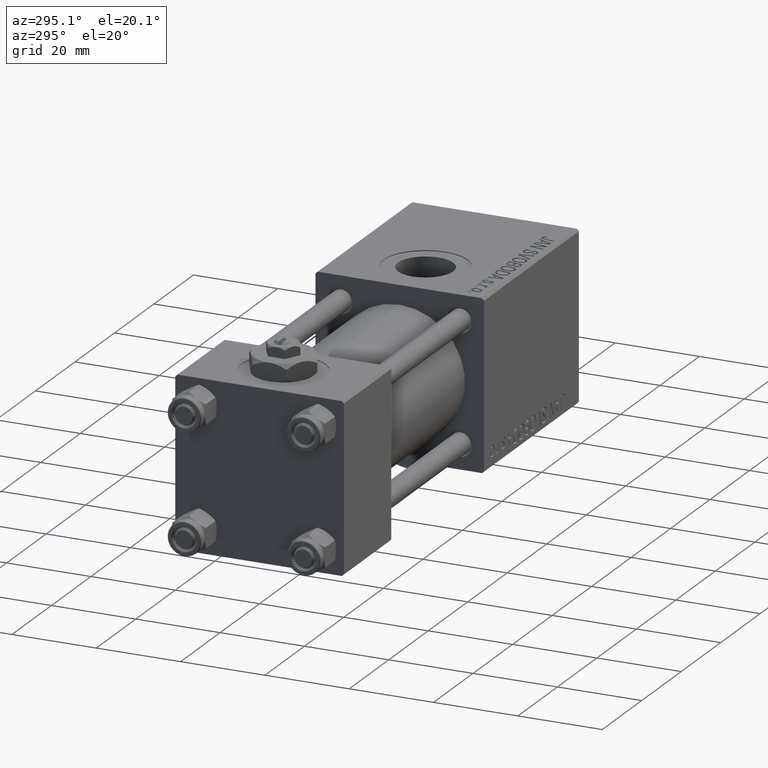
[diagram: clean part render]
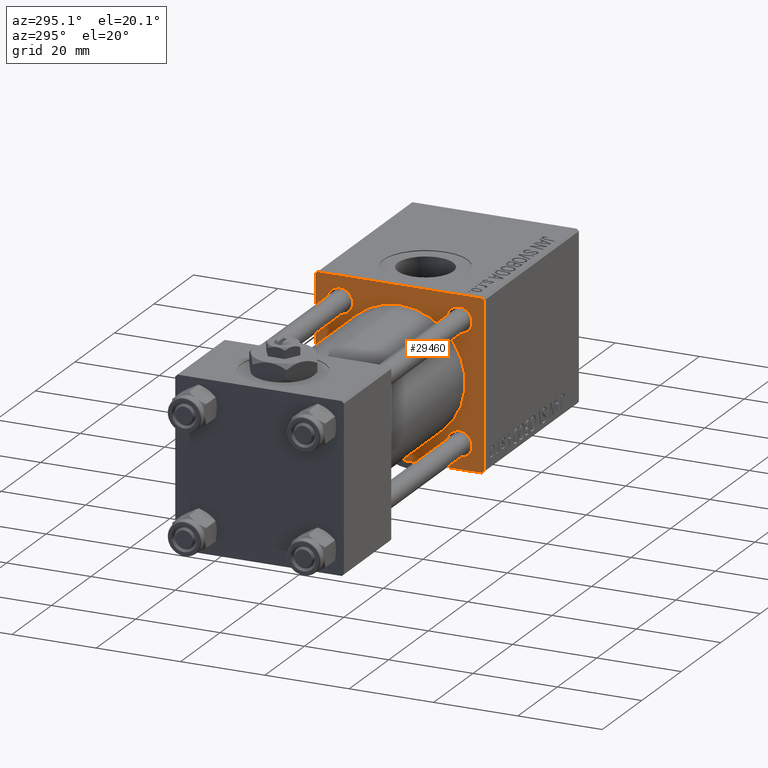
[diagram: same view with one face highlighted and labeled with its STEP entity id]
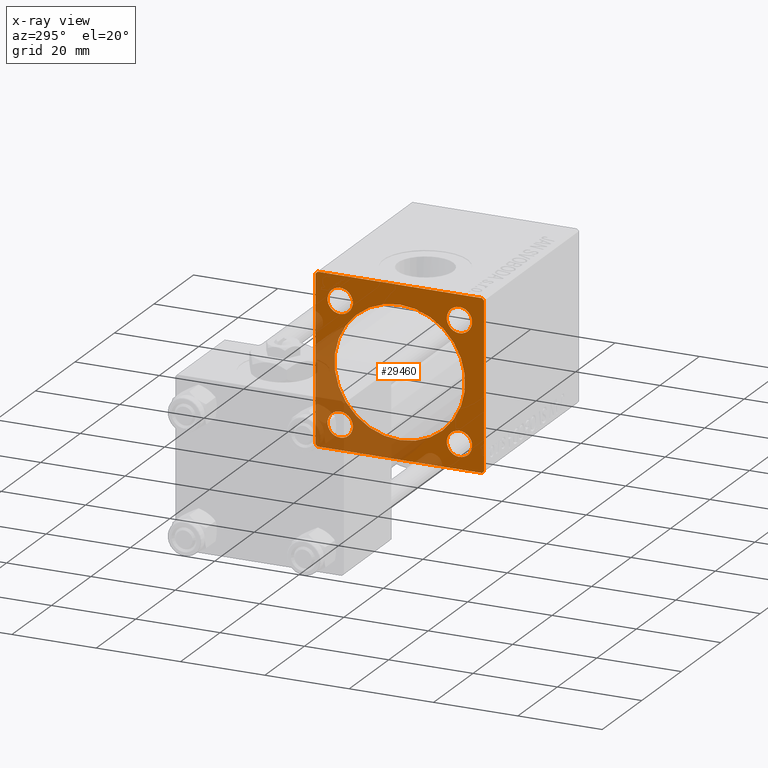
[diagram: x-ray of the same camera — body ghosted, the highlighted face saturated]
A machine part, auxiliary view. The second image highlights one B-rep face of the part: STEP entity #29460.
The next image is the same camera in x-ray: the body ghosted, the highlighted face saturated — about 34% of this face is hidden behind the body in this view.
In plain terms, the highlighted planar face has unit normal (-1, 0, 0).
Its self-contained STEP definition (entity closure, byte-faithful):
#747 = CARTESIAN_POINT ( 'NONE',  ( 71.00000000000001421, 19.74999999999999645, -19.74999999999999645 ) ) ;
#883 = EDGE_CURVE ( 'NONE', #21408, #43616, #9588, .T. ) ;
#1068 = FACE_BOUND ( 'NONE', #15625, .T. ) ;
#1083 = CARTESIAN_POINT ( 'NONE',  ( 71.00000000000001421, -19.50000000000002487, -20.00000000000000000 ) ) ;
#1185 = VERTEX_POINT ( 'NONE', #11917 ) ;
#1434 = ORIENTED_EDGE ( 'NONE', *, *, #23300, .T. ) ;
#1675 = CARTESIAN_POINT ( 'NONE',  ( 71.00000000000001421, -14.15000000000000036, -11.14999999999999680 ) ) ;
#1779 = CIRCLE ( 'NONE', #22859, 15.50000000000000000 ) ;
#2062 = AXIS2_PLACEMENT_3D ( 'NONE', #30205, #2448, #18267 ) ;
#2175 = ORIENTED_EDGE ( 'NONE', *, *, #18856, .T. ) ;
#2213 = ORIENTED_EDGE ( 'NONE', *, *, #15958, .T. ) ;
#2448 = DIRECTION ( 'NONE',  ( 1.000000000000000000, 0.000000000000000000, 0.000000000000000000 ) ) ;
#3237 = EDGE_CURVE ( 'NONE', #43473, #43616, #40203, .T. ) ;
#4255 = CARTESIAN_POINT ( 'NONE',  ( 71.00000000000001421, 0.000000000000000000, 0.000000000000000000 ) ) ;
#4827 = EDGE_CURVE ( 'NONE', #1185, #46134, #30425, .T. ) ;
#4895 = VECTOR ( 'NONE', #36216, 1000.000000000000000 ) ;
#5136 = ORIENTED_EDGE ( 'NONE', *, *, #35132, .F. ) ;
#6135 = CARTESIAN_POINT ( 'NONE',  ( 71.00000000000001421, 14.15000000000000036, 11.14999999999999680 ) ) ;
#6204 = CARTESIAN_POINT ( 'NONE',  ( 71.00000000000001421, 19.74999999999971578, 19.75000000000026290 ) ) ;
#6800 = EDGE_CURVE ( 'NONE', #8627, #16056, #12798, .T. ) ;
#6832 = ORIENTED_EDGE ( 'NONE', *, *, #4827, .T. ) ;
#7193 = VERTEX_POINT ( 'NONE', #9322 ) ;
#7291 = DIRECTION ( 'NONE',  ( 1.000000000000000000, 0.000000000000000000, 0.000000000000000000 ) ) ;
#7948 = FACE_BOUND ( 'NONE', #21122, .T. ) ;
#8078 = CIRCLE ( 'NONE', #49477, 3.000000000000004441 ) ;
#8080 = DIRECTION ( 'NONE',  ( 0.000000000000000000, 0.000000000000000000, 1.000000000000000000 ) ) ;
#8627 = VERTEX_POINT ( 'NONE', #51480 ) ;
#8664 = VERTEX_POINT ( 'NONE', #47796 ) ;
#8720 = DIRECTION ( 'NONE',  ( -0.000000000000000000, 0.7071067811865573427, 0.7071067811865376918 ) ) ;
#8881 = AXIS2_PLACEMENT_3D ( 'NONE', #40734, #9227, #16881 ) ;
#8917 = VECTOR ( 'NONE', #50926, 1000.000000000000000 ) ;
#9227 = DIRECTION ( 'NONE',  ( 1.000000000000000000, 0.000000000000000000, 0.000000000000000000 ) ) ;
#9253 = ORIENTED_EDGE ( 'NONE', *, *, #22684, .T. ) ;
#9322 = CARTESIAN_POINT ( 'NONE',  ( 71.00000000000001421, -14.15000000000000036, 11.14999999999999503 ) ) ;
#9430 = DIRECTION ( 'NONE',  ( 0.000000000000000000, 0.000000000000000000, 1.000000000000000000 ) ) ;
#9588 = LINE ( 'NONE', #13028, #29564 ) ;
#10119 = DIRECTION ( 'NONE',  ( 0.000000000000000000, 0.000000000000000000, -1.000000000000000000 ) ) ;
#10144 = CIRCLE ( 'NONE', #18559, 3.000000000000004441 ) ;
#10450 = LINE ( 'NONE', #14405, #8917 ) ;
#11149 = ORIENTED_EDGE ( 'NONE', *, *, #16913, .T. ) ;
#11176 = DIRECTION ( 'NONE',  ( 0.000000000000000000, 0.7071067811865574537, -0.7071067811865376918 ) ) ;
#11427 = DIRECTION ( 'NONE',  ( 0.000000000000000000, 0.000000000000000000, 1.000000000000000000 ) ) ;
#11827 = LINE ( 'NONE', #747, #43662 ) ;
#11874 = DIRECTION ( 'NONE',  ( 0.000000000000000000, -0.7071067811865376918, 0.7071067811865574537 ) ) ;
#11888 = FACE_BOUND ( 'NONE', #24206, .T. ) ;
#11917 = CARTESIAN_POINT ( 'NONE',  ( 71.00000000000001421, 14.15000000000000036, -17.15000000000000568 ) ) ;
#11951 = AXIS2_PLACEMENT_3D ( 'NONE', #43407, #27506, #16116 ) ;
#12140 = LINE ( 'NONE', #16358, #4895 ) ;
#12408 = DIRECTION ( 'NONE',  ( -0.000000000000000000, 0.000000000000000000, 1.000000000000000000 ) ) ;
#12798 = CIRCLE ( 'NONE', #38148, 3.000000000000004441 ) ;
#13028 = CARTESIAN_POINT ( 'NONE',  ( 71.00000000000001421, -20.00000000000000355, 19.99999999999999645 ) ) ;
#13096 = EDGE_LOOP ( 'NONE', ( #41198, #23648, #31573, #35668, #5136, #28745, #11149, #1434 ) ) ;
#13913 = ORIENTED_EDGE ( 'NONE', *, *, #18443, .T. ) ;
#14365 = AXIS2_PLACEMENT_3D ( 'NONE', #25403, #17212, #41589 ) ;
#14405 = CARTESIAN_POINT ( 'NONE',  ( 71.00000000000001421, 19.99999999999999645, -20.00000000000000000 ) ) ;
#15193 = VECTOR ( 'NONE', #11874, 999.9999999999998863 ) ;
#15625 = EDGE_LOOP ( 'NONE', ( #9253, #2175 ) ) ;
#15809 = CARTESIAN_POINT ( 'NONE',  ( 71.00000000000001421, -14.15000000000000036, 17.15000000000000568 ) ) ;
#15844 = LINE ( 'NONE', #44974, #39416 ) ;
#15958 = EDGE_CURVE ( 'NONE', #46134, #1185, #22287, .T. ) ;
#16056 = VERTEX_POINT ( 'NONE', #1675 ) ;
#16116 = DIRECTION ( 'NONE',  ( 0.000000000000000000, 0.000000000000000000, -1.000000000000000000 ) ) ;
#16358 = CARTESIAN_POINT ( 'NONE',  ( 71.00000000000001421, 19.99999999999999645, 20.00000000000000000 ) ) ;
#16881 = DIRECTION ( 'NONE',  ( 0.000000000000000000, 0.000000000000000000, 1.000000000000000000 ) ) ;
#16913 = EDGE_CURVE ( 'NONE', #48575, #51024, #27013, .T. ) ;
#17159 = FACE_BOUND ( 'NONE', #35851, .T. ) ;
#17212 = DIRECTION ( 'NONE',  ( 1.000000000000000000, 0.000000000000000000, 0.000000000000000000 ) ) ;
#18267 = DIRECTION ( 'NONE',  ( 0.000000000000000000, 0.000000000000000000, 1.000000000000000000 ) ) ;
#18443 = EDGE_CURVE ( 'NONE', #8664, #46702, #26600, .T. ) ;
#18452 = CARTESIAN_POINT ( 'NONE',  ( 71.00000000000001421, -2.602085213965210642E-15, 15.50000000000000000 ) ) ;
#18559 = AXIS2_PLACEMENT_3D ( 'NONE', #48513, #20679, #24650 ) ;
#18856 = EDGE_CURVE ( 'NONE', #7193, #21832, #8078, .T. ) ;
#18967 = EDGE_CURVE ( 'NONE', #30918, #43473, #10450, .T. ) ;
#19109 = ORIENTED_EDGE ( 'NONE', *, *, #44005, .T. ) ;
#20095 = CARTESIAN_POINT ( 'NONE',  ( 71.00000000000001421, -7.038826752868131828E-16, -15.50000000000000000 ) ) ;
#20333 = DIRECTION ( 'NONE',  ( -1.000000000000000000, 0.000000000000000000, -0.000000000000000000 ) ) ;
#20622 = DIRECTION ( 'NONE',  ( 0.000000000000000000, 0.000000000000000000, 1.000000000000000000 ) ) ;
#20679 = DIRECTION ( 'NONE',  ( 1.000000000000000000, 0.000000000000000000, 0.000000000000000000 ) ) ;
#21122 = EDGE_LOOP ( 'NONE', ( #47301, #45031 ) ) ;
#21408 = VERTEX_POINT ( 'NONE', #24439 ) ;
#21832 = VERTEX_POINT ( 'NONE', #15809 ) ;
#22287 = CIRCLE ( 'NONE', #2062, 3.000000000000004441 ) ;
#22684 = EDGE_CURVE ( 'NONE', #21832, #7193, #36050, .T. ) ;
#22859 = AXIS2_PLACEMENT_3D ( 'NONE', #46428, #26299, #33986 ) ;
#23300 = EDGE_CURVE ( 'NONE', #51024, #30918, #11827, .T. ) ;
#23306 = DIRECTION ( 'NONE',  ( 1.000000000000000000, 0.000000000000000000, 0.000000000000000000 ) ) ;
#23648 = ORIENTED_EDGE ( 'NONE', *, *, #3237, .T. ) ;
#24206 = EDGE_LOOP ( 'NONE', ( #2213, #6832 ) ) ;
#24300 = FACE_OUTER_BOUND ( 'NONE', #13096, .T. ) ;
#24439 = CARTESIAN_POINT ( 'NONE',  ( 71.00000000000001421, -20.00000000000000355, 19.50000000000002487 ) ) ;
#24650 = DIRECTION ( 'NONE',  ( 0.000000000000000000, 0.000000000000000000, 1.000000000000000000 ) ) ;
#25224 = CIRCLE ( 'NONE', #42155, 3.000000000000004441 ) ;
#25403 = CARTESIAN_POINT ( 'NONE',  ( 71.00000000000001421, 14.15000000000000036, -14.15000000000000036 ) ) ;
#25538 = CARTESIAN_POINT ( 'NONE',  ( 71.00000000000001421, -14.15000000000000036, 14.15000000000000036 ) ) ;
#26057 = CARTESIAN_POINT ( 'NONE',  ( 71.00000000000001421, 19.99999999999999645, -19.50000000000000000 ) ) ;
#26299 = DIRECTION ( 'NONE',  ( 1.000000000000000000, 0.000000000000000000, 0.000000000000000000 ) ) ;
#26600 = CIRCLE ( 'NONE', #8881, 3.000000000000004441 ) ;
#27013 = LINE ( 'NONE', #46374, #29104 ) ;
#27108 = ORIENTED_EDGE ( 'NONE', *, *, #6800, .T. ) ;
#27506 = DIRECTION ( 'NONE',  ( 1.000000000000000000, 0.000000000000000000, 0.000000000000000000 ) ) ;
#28546 = CARTESIAN_POINT ( 'NONE',  ( 71.00000000000001421, 14.15000000000000036, -11.14999999999999680 ) ) ;
#28745 = ORIENTED_EDGE ( 'NONE', *, *, #42928, .T. ) ;
#28997 = EDGE_CURVE ( 'NONE', #16056, #8627, #25224, .T. ) ;
#29104 = VECTOR ( 'NONE', #10119, 1000.000000000000000 ) ;
#29460 = ADVANCED_FACE ( 'NONE', ( #1068, #41003, #11888, #17159, #7948, #24300 ), #40476, .T. ) ;
#29564 = VECTOR ( 'NONE', #32600, 1000.000000000000000 ) ;
#30205 = CARTESIAN_POINT ( 'NONE',  ( 71.00000000000001421, 14.15000000000000036, -14.15000000000000036 ) ) ;
#30410 = EDGE_LOOP ( 'NONE', ( #13913, #19109 ) ) ;
#30425 = CIRCLE ( 'NONE', #14365, 3.000000000000004441 ) ;
#30918 = VERTEX_POINT ( 'NONE', #42507 ) ;
#31573 = ORIENTED_EDGE ( 'NONE', *, *, #883, .F. ) ;
#32600 = DIRECTION ( 'NONE',  ( 0.000000000000000000, 8.673617379884036705E-17, -1.000000000000000000 ) ) ;
#32885 = EDGE_CURVE ( 'NONE', #21408, #45007, #15844, .T. ) ;
#33515 = AXIS2_PLACEMENT_3D ( 'NONE', #48451, #40774, #20622 ) ;
#33986 = DIRECTION ( 'NONE',  ( 0.000000000000000000, 0.000000000000000000, -1.000000000000000000 ) ) ;
#35132 = EDGE_CURVE ( 'NONE', #41633, #45007, #12140, .T. ) ;
#35668 = ORIENTED_EDGE ( 'NONE', *, *, #32885, .T. ) ;
#35770 = CARTESIAN_POINT ( 'NONE',  ( 71.00000000000001421, -14.15000000000000036, -14.15000000000000036 ) ) ;
#35851 = EDGE_LOOP ( 'NONE', ( #43557, #27108 ) ) ;
#36050 = CIRCLE ( 'NONE', #33515, 3.000000000000004441 ) ;
#36216 = DIRECTION ( 'NONE',  ( 0.000000000000000000, -1.000000000000000000, -8.673617379884035472E-17 ) ) ;
#37151 = VERTEX_POINT ( 'NONE', #18452 ) ;
#37207 = DIRECTION ( 'NONE',  ( 1.000000000000000000, 0.000000000000000000, 0.000000000000000000 ) ) ;
#38148 = AXIS2_PLACEMENT_3D ( 'NONE', #48820, #7291, #8080 ) ;
#39308 = CARTESIAN_POINT ( 'NONE',  ( 71.00000000000001421, -20.00000000000000000, -19.50000000000001066 ) ) ;
#39416 = VECTOR ( 'NONE', #8720, 1000.000000000000114 ) ;
#40203 = LINE ( 'NONE', #52103, #15193 ) ;
#40476 = PLANE ( 'NONE',  #40524 ) ;
#40524 = AXIS2_PLACEMENT_3D ( 'NONE', #4255, #20333, #12408 ) ;
#40734 = CARTESIAN_POINT ( 'NONE',  ( 71.00000000000001421, 14.15000000000000036, 14.15000000000000036 ) ) ;
#40774 = DIRECTION ( 'NONE',  ( 1.000000000000000000, 0.000000000000000000, 0.000000000000000000 ) ) ;
#41003 = FACE_BOUND ( 'NONE', #30410, .T. ) ;
#41198 = ORIENTED_EDGE ( 'NONE', *, *, #18967, .T. ) ;
#41589 = DIRECTION ( 'NONE',  ( 0.000000000000000000, 0.000000000000000000, 1.000000000000000000 ) ) ;
#41629 = CARTESIAN_POINT ( 'NONE',  ( 71.00000000000001421, -19.50000000000001776, 19.99999999999999645 ) ) ;
#41633 = VERTEX_POINT ( 'NONE', #50656 ) ;
#42155 = AXIS2_PLACEMENT_3D ( 'NONE', #35770, #23306, #11427 ) ;
#42507 = CARTESIAN_POINT ( 'NONE',  ( 71.00000000000001421, 19.49999999999999645, -20.00000000000000000 ) ) ;
#42928 = EDGE_CURVE ( 'NONE', #41633, #48575, #46924, .T. ) ;
#43407 = CARTESIAN_POINT ( 'NONE',  ( 71.00000000000001421, -2.602085213965210642E-15, 0.000000000000000000 ) ) ;
#43473 = VERTEX_POINT ( 'NONE', #1083 ) ;
#43557 = ORIENTED_EDGE ( 'NONE', *, *, #28997, .T. ) ;
#43616 = VERTEX_POINT ( 'NONE', #39308 ) ;
#43662 = VECTOR ( 'NONE', #44401, 1000.000000000000114 ) ;
#44005 = EDGE_CURVE ( 'NONE', #46702, #8664, #10144, .T. ) ;
#44401 = DIRECTION ( 'NONE',  ( -0.000000000000000000, -0.7071067811865474617, -0.7071067811865474617 ) ) ;
#44974 = CARTESIAN_POINT ( 'NONE',  ( 71.00000000000001421, -19.74999999999973710, 19.75000000000028422 ) ) ;
#45007 = VERTEX_POINT ( 'NONE', #41629 ) ;
#45031 = ORIENTED_EDGE ( 'NONE', *, *, #49034, .T. ) ;
#45341 = VERTEX_POINT ( 'NONE', #20095 ) ;
#46134 = VERTEX_POINT ( 'NONE', #28546 ) ;
#46374 = CARTESIAN_POINT ( 'NONE',  ( 71.00000000000001421, 19.99999999999999645, 20.00000000000000000 ) ) ;
#46428 = CARTESIAN_POINT ( 'NONE',  ( 71.00000000000001421, -2.602085213965210642E-15, 0.000000000000000000 ) ) ;
#46702 = VERTEX_POINT ( 'NONE', #6135 ) ;
#46858 = EDGE_CURVE ( 'NONE', #37151, #45341, #49180, .T. ) ;
#46924 = LINE ( 'NONE', #6204, #50661 ) ;
#47301 = ORIENTED_EDGE ( 'NONE', *, *, #46858, .T. ) ;
#47796 = CARTESIAN_POINT ( 'NONE',  ( 71.00000000000001421, 14.15000000000000036, 17.15000000000000568 ) ) ;
#48451 = CARTESIAN_POINT ( 'NONE',  ( 71.00000000000001421, -14.15000000000000036, 14.15000000000000036 ) ) ;
#48513 = CARTESIAN_POINT ( 'NONE',  ( 71.00000000000001421, 14.15000000000000036, 14.15000000000000036 ) ) ;
#48575 = VERTEX_POINT ( 'NONE', #49094 ) ;
#48820 = CARTESIAN_POINT ( 'NONE',  ( 71.00000000000001421, -14.15000000000000036, -14.15000000000000036 ) ) ;
#49034 = EDGE_CURVE ( 'NONE', #45341, #37151, #1779, .T. ) ;
#49094 = CARTESIAN_POINT ( 'NONE',  ( 71.00000000000001421, 19.99999999999999645, 19.49999999999998579 ) ) ;
#49180 = CIRCLE ( 'NONE', #11951, 15.50000000000000000 ) ;
#49477 = AXIS2_PLACEMENT_3D ( 'NONE', #25538, #37207, #9430 ) ;
#50656 = CARTESIAN_POINT ( 'NONE',  ( 71.00000000000001421, 19.49999999999996803, 20.00000000000000000 ) ) ;
#50661 = VECTOR ( 'NONE', #11176, 999.9999999999998863 ) ;
#50926 = DIRECTION ( 'NONE',  ( 0.000000000000000000, -1.000000000000000000, 0.000000000000000000 ) ) ;
#51024 = VERTEX_POINT ( 'NONE', #26057 ) ;
#51480 = CARTESIAN_POINT ( 'NONE',  ( 71.00000000000001421, -14.15000000000000036, -17.15000000000000568 ) ) ;
#52103 = CARTESIAN_POINT ( 'NONE',  ( 71.00000000000001421, -19.75000000000028066, -19.74999999999973355 ) ) ;